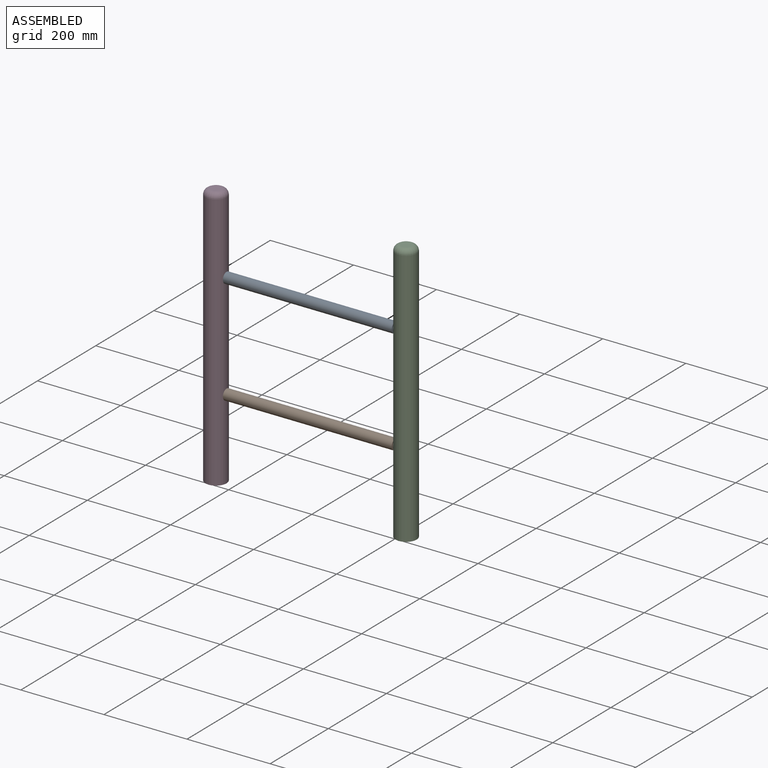
[diagram: assembled view]
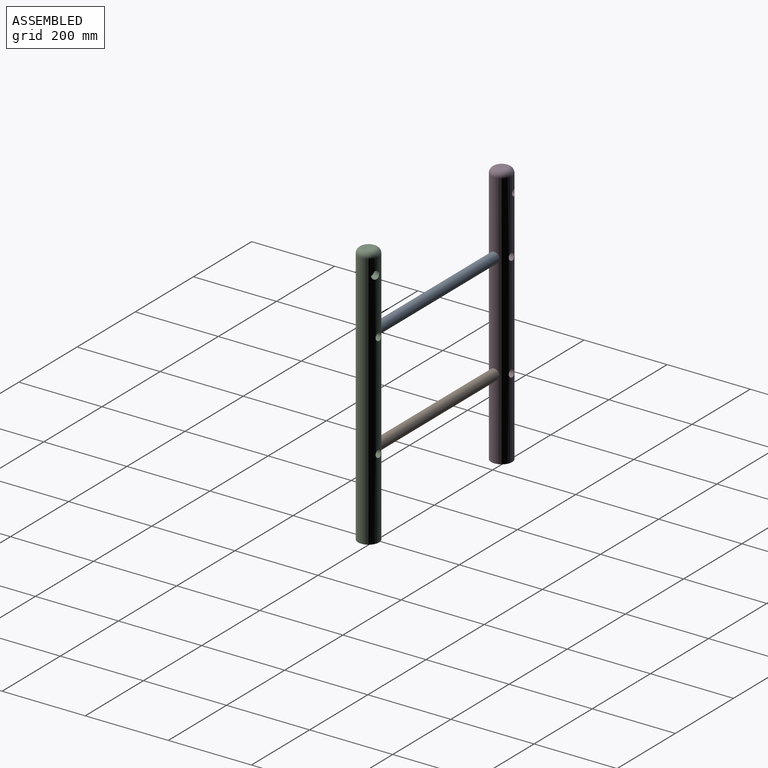
[diagram: assembled view, second angle]
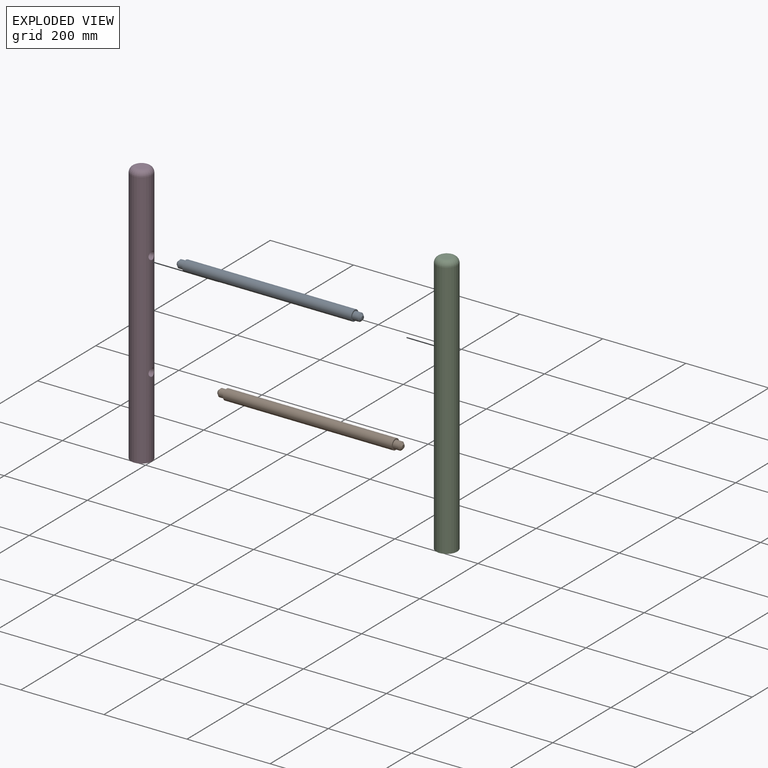
[diagram: exploded view]
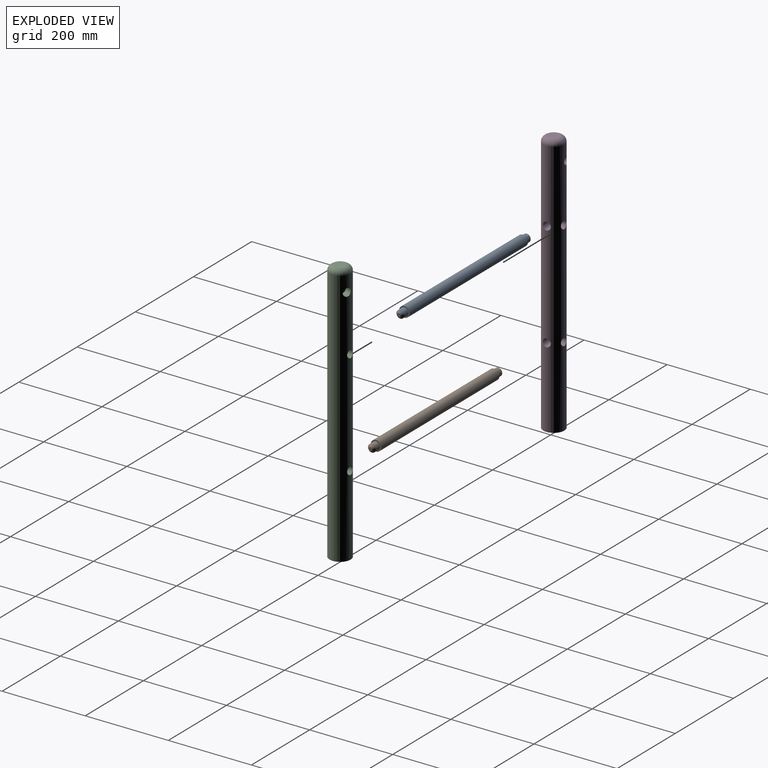
[diagram: exploded view, second angle]
ASSEMBLY  parts=4 mates=3
PART A: 9 faces, bbox 444.5x25.4x25.4 mm
  f0: cylinder r=12.7mm len=406.4mm, axis (-1,0,0), area 32429.3mm2, adj f1,f2
  f1: plane 25.4x25.4mm, normal (1,0,0), area 221.7mm2, adj f0,f3
  f2: plane 25.4x25.4mm, normal (-1,0,0), area 221.7mm2, adj f0,f5
  f3: cylinder r=9.53mm len=19.05mm, axis (-1,0,0), area 836.1mm2, adj f1,f7
  f4: plane 8.89x8.89mm, normal (1,0,0), area 62.1mm2, adj f7
  f5: cylinder r=9.53mm len=19.05mm, axis (1,0,0), area 836.1mm2, adj f2,f8
  f6: plane 8.89x8.89mm, normal (-1,0,0), area 62.1mm2, adj f8
  f7: cone r=4.45mm half-angle=45deg, axis (-1,0,0), area 315.3mm2, adj f3,f4
  f8: cone r=4.45mm half-angle=45deg, axis (1,0,0), area 315.3mm2, adj f5,f6
PART B: same geometry as A
PART C: 14 faces, bbox 635x55x55 mm
  f0: cylinder r=25.4mm len=622.3mm, axis (1,0,0), area 97865.7mm2, adj f1,f3,f5,f7,f9,f11,f13
  f1: cylinder r=9.53mm len=25.4mm, axis (0,0,1), area 1330mm2, adj f0,f2,f9,f10
  f2: plane 19.05x15.88mm, normal (0,0,1), area 253.8mm2, adj f1,f10
  f3: cylinder r=9.53mm len=25.4mm, axis (0,0,1), area 1330mm2, adj f0,f4,f7,f8
  f4: plane 19.05x15.88mm, normal (0,0,1), area 253.8mm2, adj f3,f8
  f5: plane 50.8x50.8mm, normal (1,0,0), area 2026.8mm2, adj f0
  f6: plane 25.4x25.4mm, normal (-1,0,0), area 506.7mm2, adj f13
  f7: cylinder r=9.53mm len=19.05mm, axis (0,-1,0), area 1051.5mm2, adj f0,f3,f8
  f8: plane 19.05x15.88mm, normal (0,-1,0), area 163.6mm2, adj f3,f4,f7
  f9: cylinder r=9.53mm len=19.05mm, axis (0,-1,0), area 1051.5mm2, adj f0,f1,f10
  f10: plane 19.05x15.88mm, normal (0,-1,0), area 163.6mm2, adj f1,f2,f9
  f11: cylinder r=9.53mm len=24.66mm, axis (0,-0.93,-0.36), area 1085.3mm2, adj f0,f12
  f12: plane 19.05x17.76mm, normal (0,-0.93,-0.36), area 285mm2, adj f11
  f13: torus R=12.7mm, axis (-1,0,0), area 2605.3mm2, adj f0,f6
PART D: 14 faces, bbox 635x55x55 mm
  f0: cylinder r=25.4mm len=622.3mm, axis (1,0,0), area 97863mm2, adj f1,f3,f5,f7,f9,f11,f13
  f1: plane 50.8x50.8mm, normal (1,0,0), area 2026.8mm2, adj f0
  f2: plane 25.4x25.4mm, normal (-1,0,0), area 506.7mm2, adj f13
  f3: cylinder r=9.53mm len=25.4mm, axis (0,0,1), area 1330mm2, adj f0,f4,f9,f10
  f4: plane 19.05x15.88mm, normal (0,0,1), area 253.8mm2, adj f3,f10
  f5: cylinder r=9.53mm len=25.4mm, axis (0,0,1), area 1330mm2, adj f0,f6,f7,f8
  f6: plane 19.05x15.88mm, normal (0,0,1), area 253.8mm2, adj f5,f8
  f7: cylinder r=9.53mm len=19.05mm, axis (0,1,0), area 1051.7mm2, adj f0,f5,f8
  f8: plane 19.05x15.88mm, normal (0,1,0), area 163.6mm2, adj f5,f6,f7
  f9: cylinder r=9.53mm len=19.05mm, axis (0,1,0), area 1051.7mm2, adj f0,f3,f10
  f10: plane 19.05x15.88mm, normal (0,1,0), area 163.6mm2, adj f3,f4,f9
  f11: cylinder r=9.53mm len=24.66mm, axis (0,0.93,-0.36), area 1085.3mm2, adj f0,f12
  f12: plane 19.05x17.76mm, normal (0,0.93,-0.36), area 285mm2, adj f11
  f13: torus R=12.7mm, axis (-1,0,0), area 2605.3mm2, adj f0,f2
PLACE A t=(-205.24,0.46,187.6)mm fixed
PLACE B rot(axis=(-0.42,-0.83,0.37),0deg) t=(-205.24,0.46,-66.4)mm
PLACE C rot(axis=(0.71,0,-0.71),180deg) t=(226.73,0.46,-6.08)mm
PLACE D rot(axis=(0,1,0),90deg) t=(-230.81,0.46,-6.08)mm
MATE fastened A.f3 <-> C.f3  axis (-1,0,0) through (201.16,0.46,187.6)mm
MATE fastened A.f3 <-> D.f5  axis (1,0,0) through (-205.24,0.46,187.6)mm
MATE fastened B.f3 <-> C.f1  axis (-1,0,0) through (201.16,0.46,-66.4)mm
